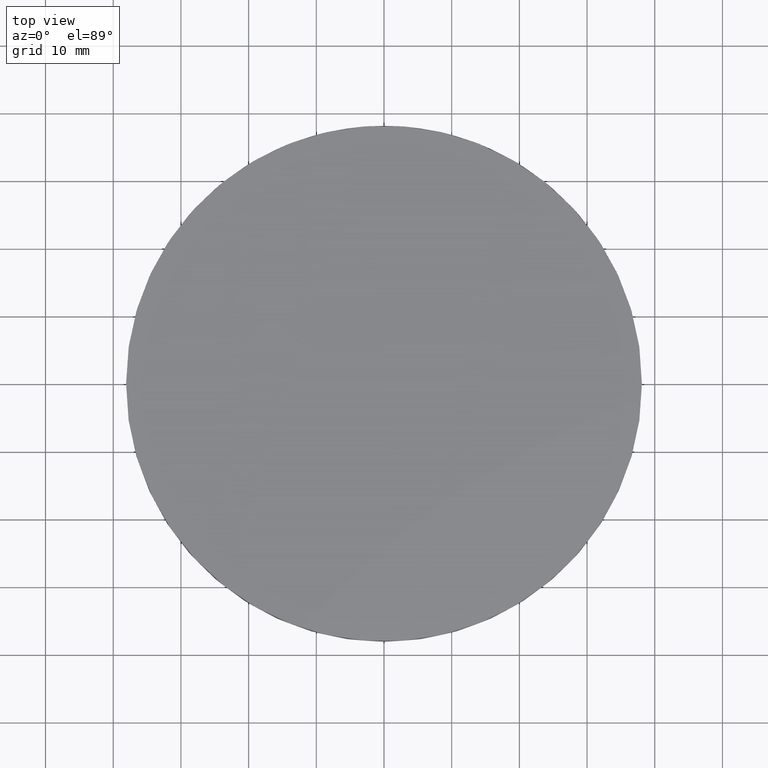
[diagram: clean part render]
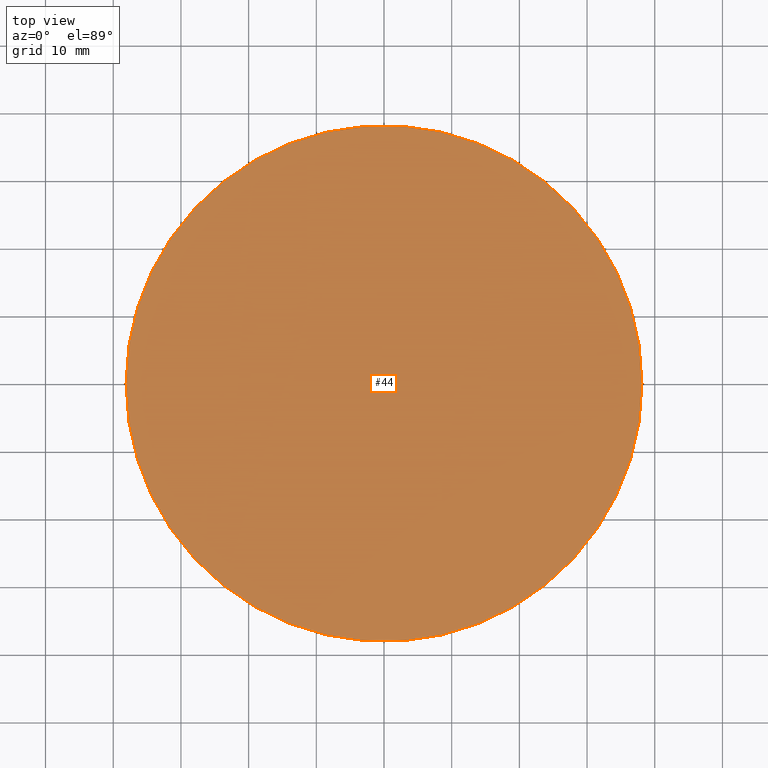
[diagram: same view with one face highlighted and labeled with its STEP entity id]
A machine part, top view. The second image highlights one B-rep face of the part: STEP entity #44.
In plain terms, the highlighted planar face has unit normal (0, 0, 1).
Its self-contained STEP definition (entity closure, byte-faithful):
#15 = DIRECTION ( 'NONE',  ( 1.000000000000000000, 0.0000000000000000000, -4.553079989440438700E-017 ) ) ;
#16 = ORIENTED_EDGE ( 'NONE', *, *, #68, .F. ) ;
#34 = CARTESIAN_POINT ( 'NONE',  ( 38.09999999999999400, -1.776356839400250100E-015, 7.999999999999998200 ) ) ;
#41 = CARTESIAN_POINT ( 'NONE',  ( -9.260052435167430000E-015, -1.776356839400250100E-015, 8.000000000000000000 ) ) ;
#44 = ADVANCED_FACE ( 'NONE', ( #199 ), #195, .T. ) ;
#51 = CARTESIAN_POINT ( 'NONE',  ( -9.260052435167430000E-015, -1.776356839400250100E-015, 8.000000000000000000 ) ) ;
#68 = EDGE_CURVE ( 'NONE', #191, #185, #136, .T. ) ;
#91 = DIRECTION ( 'NONE',  ( -2.331176954593499900E-017, -1.086877198725570000E-033, -1.000000000000000000 ) ) ;
#96 = DIRECTION ( 'NONE',  ( 0.0000000000000000000, 0.0000000000000000000, 1.000000000000000000 ) ) ;
#126 = CARTESIAN_POINT ( 'NONE',  ( -38.10000000000000900, 2.889547465351166000E-015, 8.000000000000001800 ) ) ;
#136 = CIRCLE ( 'NONE', #167, 38.10000000000000100 ) ;
#156 = DIRECTION ( 'NONE',  ( 1.000000000000000000, 0.0000000000000000000, -0.0000000000000000000 ) ) ;
#161 = ORIENTED_EDGE ( 'NONE', *, *, #178, .F. ) ;
#167 = AXIS2_PLACEMENT_3D ( 'NONE', #41, #201, #15 ) ;
#173 = EDGE_LOOP ( 'NONE', ( #16, #161 ) ) ;
#175 = AXIS2_PLACEMENT_3D ( 'NONE', #51, #91, #188 ) ;
#177 = AXIS2_PLACEMENT_3D ( 'NONE', #230, #96, #156 ) ;
#178 = EDGE_CURVE ( 'NONE', #185, #191, #206, .T. ) ;
#185 = VERTEX_POINT ( 'NONE', #126 ) ;
#188 = DIRECTION ( 'NONE',  ( 1.000000000000000000, 0.0000000000000000000, -4.553079989440438700E-017 ) ) ;
#191 = VERTEX_POINT ( 'NONE', #34 ) ;
#195 = PLANE ( 'NONE',  #177 ) ;
#199 = FACE_OUTER_BOUND ( 'NONE', #173, .T. ) ;
#201 = DIRECTION ( 'NONE',  ( -2.331176954593499900E-017, -1.086877198725570000E-033, -1.000000000000000000 ) ) ;
#206 = CIRCLE ( 'NONE', #175, 38.10000000000000100 ) ;
#230 = CARTESIAN_POINT ( 'NONE',  ( 0.0000000000000000000, 77.92799999999999700, 8.000000000000000000 ) ) ;